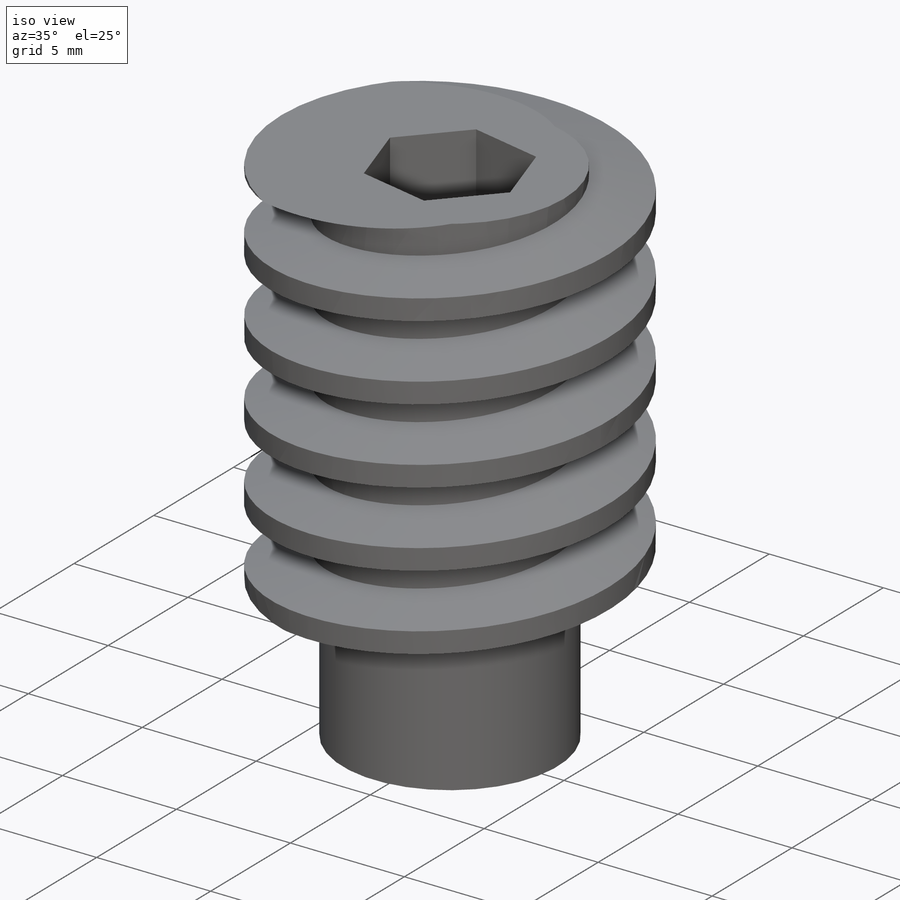
[diagram: iso view]
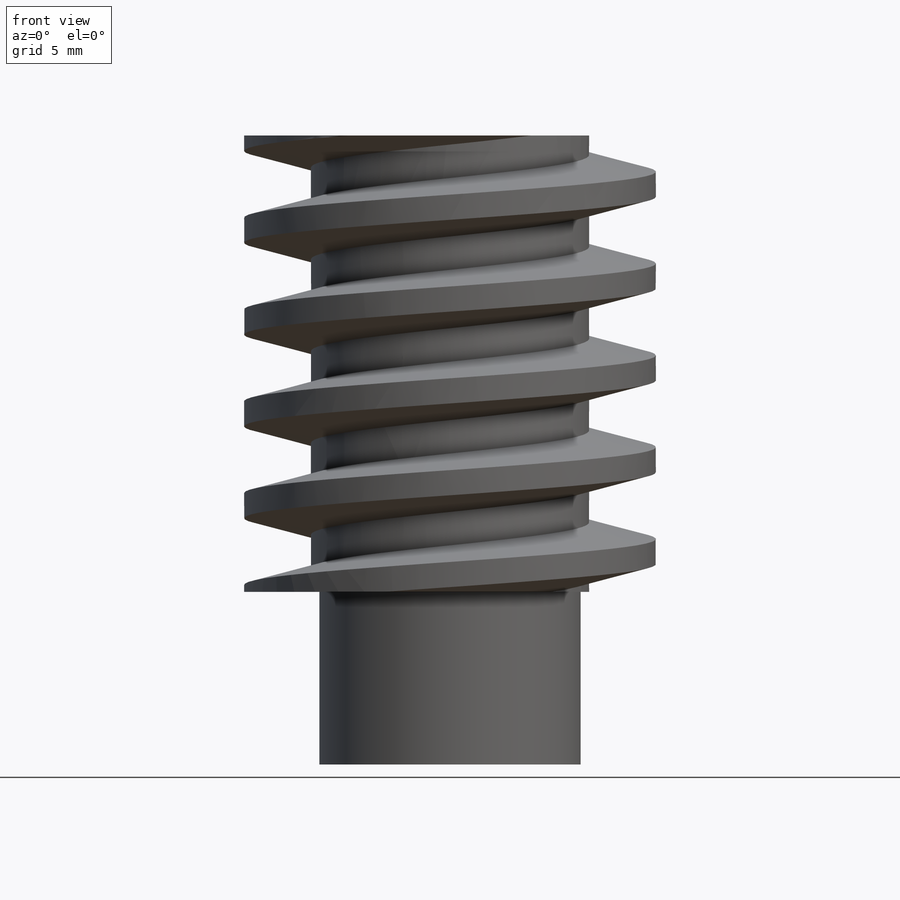
[diagram: front view]
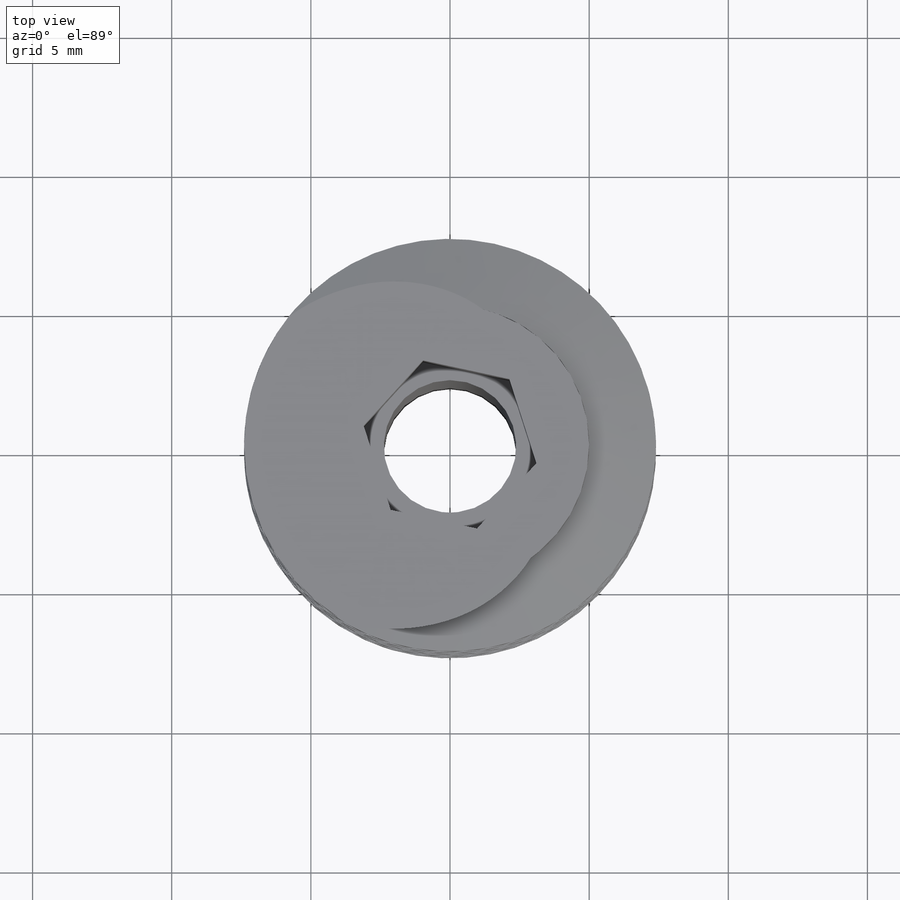
[diagram: top view]
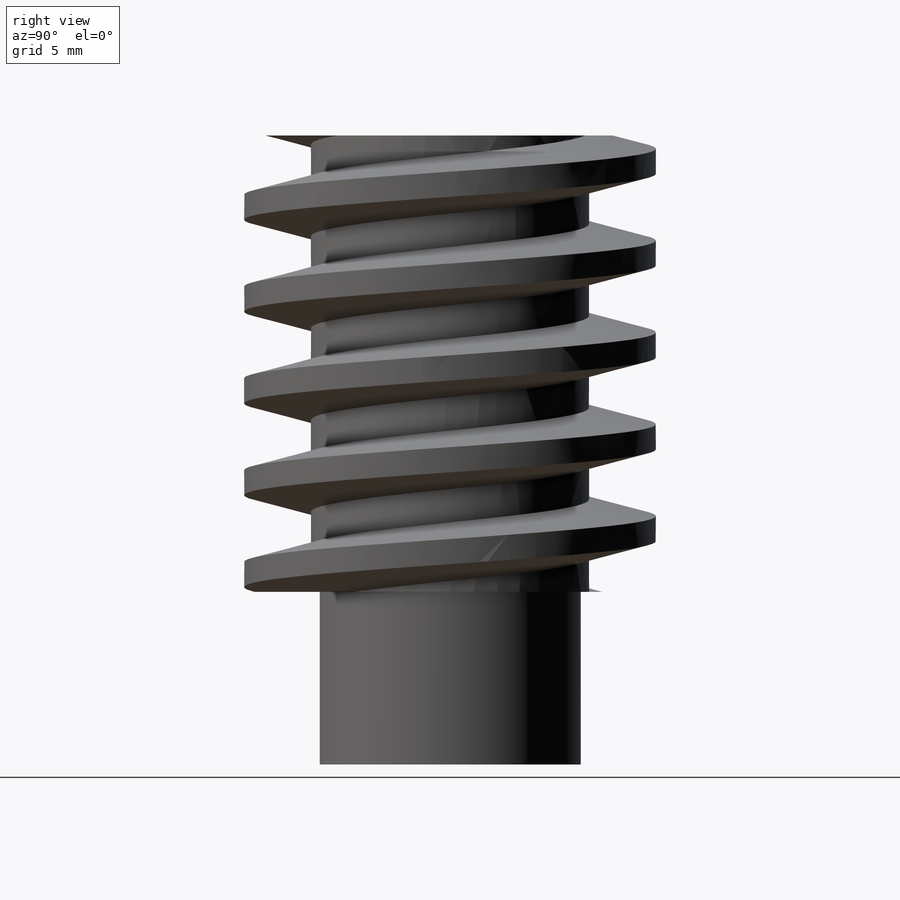
[diagram: right view]
SOLIDWORKS PART (.sldprt)
format: sldprt  version: not decoded by parser v0  size: 424,448 bytes
history: native  units: mm
features: sketch x6, cut_extrude x2, material x1, helix x1, extrude x1, sweep x1, cut_revolve x1 (+15 scaffold rows collapsed)
feature tree (28):
  scaffold x15  (default folders/planes/origin — collapsed)
  material  "Material <not specified>"
  sketch  "Sketch1"  dims[c1.D1=~7.607273mm c2.D1=28.0deg c2.D2=10.0mm c2.D3=2.1mm c2.D4=2.4mm c2.D5=~0.903226mm c2.D6=14.8mm c3.D2=4.7625mm c3.D4=~0.598387mm c4.D4=14.0deg c4.D7=10.0mm c4.D8=14.8mm c4.D6=2.0mm]
  sketch  "Sketch3"
  helix  "Helix/Spiral1"  Pitch=33mm
  sketch  "Sketch4"  dims[D1=4.76mm D2=9.5mm]
  extrude  "Boss-Extrude1"  Depth=25mm
  sweep  "Sweep1"
  sketch  "Sketch5"  dims[D1=4.7mm D2=6.2mm D3=16.4mm D4=2.0mm D5=~5.158675mm]
  cut_revolve  "Cut-Revolve1"  Angle=360deg
  sketch  "Sketch6"  dims[D1=5.5mm]
  cut_extrude  "Cut-Extrude1"  Depth=3.8mm
  sketch  "Sketch7"  dims[D1=1.5875mm]
  cut_extrude  "Cut-Extrude2"  Depth=30mm
decode coverage: 10 of 12 modeling features carry decoded parameters
note: ~ marks probable driven/reference dimensions
note: suppression state not decoded; provenance and decode notes live in map.json
